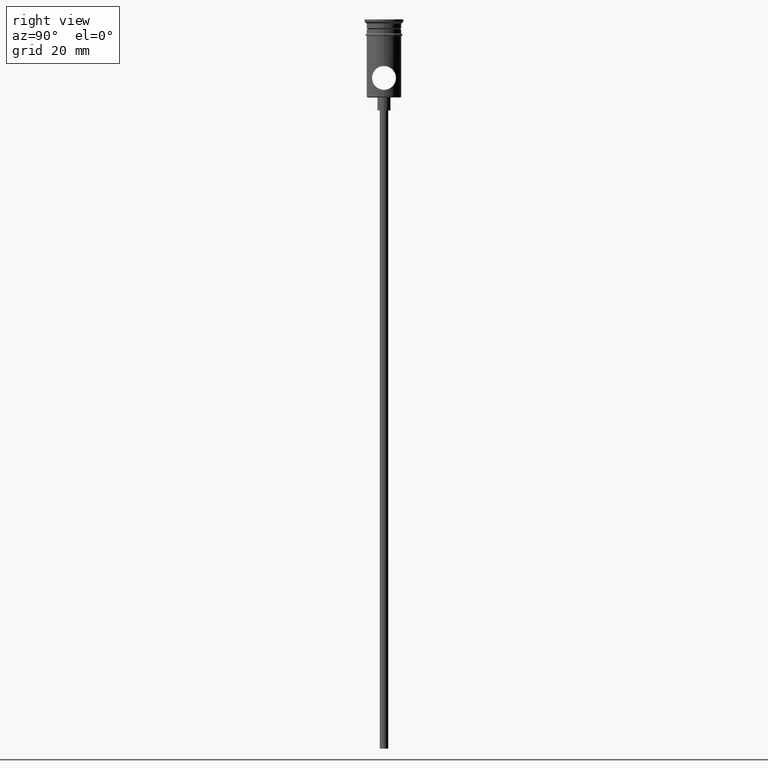
[diagram: clean part render]
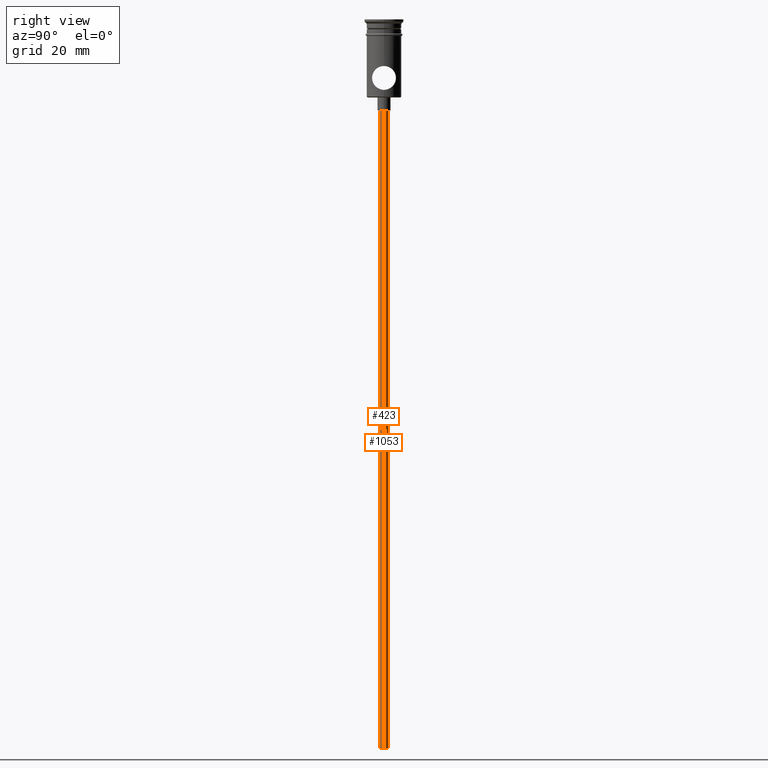
[diagram: same view with one multi-face feature highlighted, each face labeled with its STEP entity id]
A machine part, right view. The highlighted faces form ONE feature: a constant-radius fillet chain: 2 tangent blend faces with common blend radius 1 mm. The faces share edges in the B-rep.
Their STEP definitions:
[1] entity #423 (Cylinder):
#48 = CIRCLE ( 'NONE', #859, 0.9999999999999997780 ) ;
#116 = CARTESIAN_POINT ( 'NONE',  ( -0.9999999999999997780, 1.224646799147352961E-16, -167.9999999999999716 ) ) ;
#145 = EDGE_LOOP ( 'NONE', ( #420, #526, #319, #1205 ) ) ;
#178 = CARTESIAN_POINT ( 'NONE',  ( 0.000000000000000000, 0.000000000000000000, -167.9999999999999716 ) ) ;
#223 = DIRECTION ( 'NONE',  ( 0.000000000000000000, 0.000000000000000000, -1.000000000000000000 ) ) ;
#233 = AXIS2_PLACEMENT_3D ( 'NONE', #710, #257, #1345 ) ;
#257 = DIRECTION ( 'NONE',  ( 0.000000000000000000, 0.000000000000000000, -1.000000000000000000 ) ) ;
#275 = FACE_OUTER_BOUND ( 'NONE', #145, .T. ) ;
#288 = CARTESIAN_POINT ( 'NONE',  ( 0.9999999999999997780, 0.000000000000000000, -167.9999999999999716 ) ) ;
#294 = LINE ( 'NONE', #394, #531 ) ;
#318 = CARTESIAN_POINT ( 'NONE',  ( 0.000000000000000000, 0.000000000000000000, -167.9999999999999716 ) ) ;
#319 = ORIENTED_EDGE ( 'NONE', *, *, #780, .T. ) ;
#394 = CARTESIAN_POINT ( 'NONE',  ( 0.9999999999999997780, 0.000000000000000000, -167.9999999999999716 ) ) ;
#399 = CARTESIAN_POINT ( 'NONE',  ( 0.9999999999999997780, 0.000000000000000000, -20.99999999999999645 ) ) ;
#420 = ORIENTED_EDGE ( 'NONE', *, *, #1002, .F. ) ;
#423 = ADVANCED_FACE ( 'NONE', ( #275 ), #1048, .T. ) ;
#481 = LINE ( 'NONE', #824, #976 ) ;
#526 = ORIENTED_EDGE ( 'NONE', *, *, #529, .F. ) ;
#529 = EDGE_CURVE ( 'NONE', #784, #1256, #48, .T. ) ;
#531 = VECTOR ( 'NONE', #843, 1000.000000000000000 ) ;
#614 = DIRECTION ( 'NONE',  ( -0.000000000000000000, -0.000000000000000000, 1.000000000000000000 ) ) ;
#710 = CARTESIAN_POINT ( 'NONE',  ( 0.000000000000000000, 0.000000000000000000, -20.99999999999999645 ) ) ;
#780 = EDGE_CURVE ( 'NONE', #784, #1151, #294, .T. ) ;
#784 = VERTEX_POINT ( 'NONE', #288 ) ;
#824 = CARTESIAN_POINT ( 'NONE',  ( -0.9999999999999997780, 1.224646799147352961E-16, -167.9999999999999716 ) ) ;
#843 = DIRECTION ( 'NONE',  ( -0.000000000000000000, -0.000000000000000000, 1.000000000000000000 ) ) ;
#859 = AXIS2_PLACEMENT_3D ( 'NONE', #318, #223, #1210 ) ;
#976 = VECTOR ( 'NONE', #1370, 1000.000000000000000 ) ;
#991 = VERTEX_POINT ( 'NONE', #1202 ) ;
#1002 = EDGE_CURVE ( 'NONE', #1256, #991, #481, .T. ) ;
#1013 = CIRCLE ( 'NONE', #233, 0.9999999999999997780 ) ;
#1048 = CYLINDRICAL_SURFACE ( 'NONE', #1107, 0.9999999999999997780 ) ;
#1054 = DIRECTION ( 'NONE',  ( 1.000000000000000000, 0.000000000000000000, 0.000000000000000000 ) ) ;
#1107 = AXIS2_PLACEMENT_3D ( 'NONE', #178, #614, #1054 ) ;
#1151 = VERTEX_POINT ( 'NONE', #399 ) ;
#1202 = CARTESIAN_POINT ( 'NONE',  ( -0.9999999999999997780, 1.224646799147352961E-16, -20.99999999999999645 ) ) ;
#1205 = ORIENTED_EDGE ( 'NONE', *, *, #1372, .T. ) ;
#1210 = DIRECTION ( 'NONE',  ( -1.000000000000000000, 0.000000000000000000, 0.000000000000000000 ) ) ;
#1256 = VERTEX_POINT ( 'NONE', #116 ) ;
#1345 = DIRECTION ( 'NONE',  ( -1.000000000000000000, 0.000000000000000000, 0.000000000000000000 ) ) ;
#1370 = DIRECTION ( 'NONE',  ( -0.000000000000000000, -0.000000000000000000, 1.000000000000000000 ) ) ;
#1372 = EDGE_CURVE ( 'NONE', #1151, #991, #1013, .T. ) ;
[2] entity #1053 (Cylinder):
#3 = DIRECTION ( 'NONE',  ( 0.000000000000000000, 0.000000000000000000, -1.000000000000000000 ) ) ;
#26 = AXIS2_PLACEMENT_3D ( 'NONE', #946, #1264, #1273 ) ;
#51 = CYLINDRICAL_SURFACE ( 'NONE', #26, 0.9999999999999997780 ) ;
#79 = DIRECTION ( 'NONE',  ( 0.000000000000000000, 0.000000000000000000, -1.000000000000000000 ) ) ;
#116 = CARTESIAN_POINT ( 'NONE',  ( -0.9999999999999997780, 1.224646799147352961E-16, -167.9999999999999716 ) ) ;
#160 = AXIS2_PLACEMENT_3D ( 'NONE', #1189, #79, #514 ) ;
#227 = CARTESIAN_POINT ( 'NONE',  ( 0.000000000000000000, 0.000000000000000000, -167.9999999999999716 ) ) ;
#288 = CARTESIAN_POINT ( 'NONE',  ( 0.9999999999999997780, 0.000000000000000000, -167.9999999999999716 ) ) ;
#294 = LINE ( 'NONE', #394, #531 ) ;
#301 = ORIENTED_EDGE ( 'NONE', *, *, #870, .F. ) ;
#394 = CARTESIAN_POINT ( 'NONE',  ( 0.9999999999999997780, 0.000000000000000000, -167.9999999999999716 ) ) ;
#399 = CARTESIAN_POINT ( 'NONE',  ( 0.9999999999999997780, 0.000000000000000000, -20.99999999999999645 ) ) ;
#473 = ORIENTED_EDGE ( 'NONE', *, *, #780, .F. ) ;
#481 = LINE ( 'NONE', #824, #976 ) ;
#514 = DIRECTION ( 'NONE',  ( -1.000000000000000000, 0.000000000000000000, 0.000000000000000000 ) ) ;
#530 = DIRECTION ( 'NONE',  ( -1.000000000000000000, 0.000000000000000000, 0.000000000000000000 ) ) ;
#531 = VECTOR ( 'NONE', #843, 1000.000000000000000 ) ;
#713 = CIRCLE ( 'NONE', #1081, 0.9999999999999997780 ) ;
#738 = CIRCLE ( 'NONE', #160, 0.9999999999999997780 ) ;
#754 = EDGE_LOOP ( 'NONE', ( #301, #1406, #1193, #473 ) ) ;
#780 = EDGE_CURVE ( 'NONE', #784, #1151, #294, .T. ) ;
#784 = VERTEX_POINT ( 'NONE', #288 ) ;
#824 = CARTESIAN_POINT ( 'NONE',  ( -0.9999999999999997780, 1.224646799147352961E-16, -167.9999999999999716 ) ) ;
#843 = DIRECTION ( 'NONE',  ( -0.000000000000000000, -0.000000000000000000, 1.000000000000000000 ) ) ;
#870 = EDGE_CURVE ( 'NONE', #1256, #784, #713, .T. ) ;
#925 = FACE_OUTER_BOUND ( 'NONE', #754, .T. ) ;
#946 = CARTESIAN_POINT ( 'NONE',  ( 0.000000000000000000, 0.000000000000000000, -167.9999999999999716 ) ) ;
#976 = VECTOR ( 'NONE', #1370, 1000.000000000000000 ) ;
#991 = VERTEX_POINT ( 'NONE', #1202 ) ;
#1002 = EDGE_CURVE ( 'NONE', #1256, #991, #481, .T. ) ;
#1053 = ADVANCED_FACE ( 'NONE', ( #925 ), #51, .T. ) ;
#1081 = AXIS2_PLACEMENT_3D ( 'NONE', #227, #3, #530 ) ;
#1151 = VERTEX_POINT ( 'NONE', #399 ) ;
#1156 = EDGE_CURVE ( 'NONE', #991, #1151, #738, .T. ) ;
#1189 = CARTESIAN_POINT ( 'NONE',  ( 0.000000000000000000, 0.000000000000000000, -20.99999999999999645 ) ) ;
#1193 = ORIENTED_EDGE ( 'NONE', *, *, #1156, .T. ) ;
#1202 = CARTESIAN_POINT ( 'NONE',  ( -0.9999999999999997780, 1.224646799147352961E-16, -20.99999999999999645 ) ) ;
#1256 = VERTEX_POINT ( 'NONE', #116 ) ;
#1264 = DIRECTION ( 'NONE',  ( -0.000000000000000000, -0.000000000000000000, 1.000000000000000000 ) ) ;
#1273 = DIRECTION ( 'NONE',  ( 1.000000000000000000, 0.000000000000000000, 0.000000000000000000 ) ) ;
#1370 = DIRECTION ( 'NONE',  ( -0.000000000000000000, -0.000000000000000000, 1.000000000000000000 ) ) ;
#1406 = ORIENTED_EDGE ( 'NONE', *, *, #1002, .T. ) ;